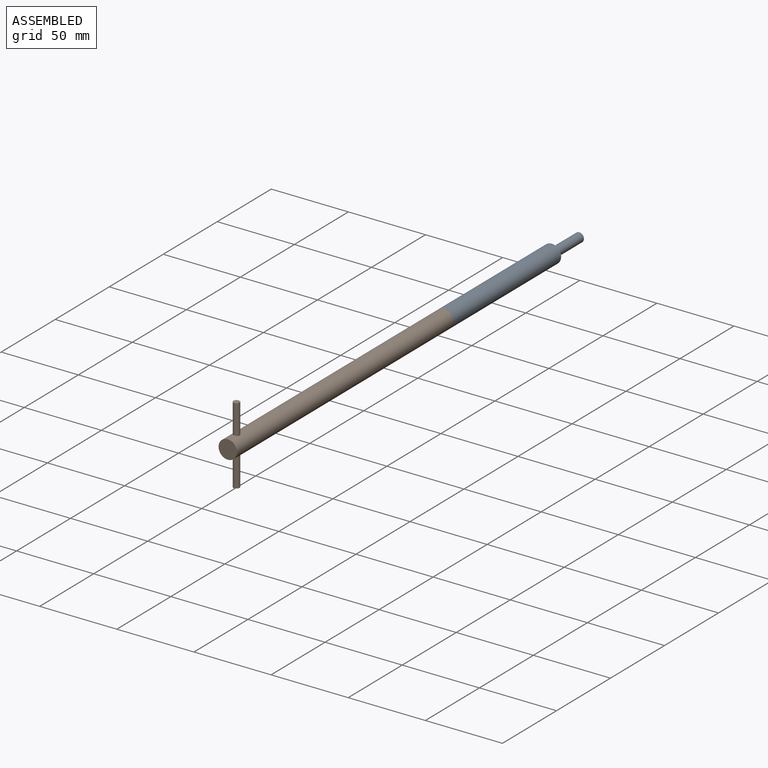
[diagram: assembled view]
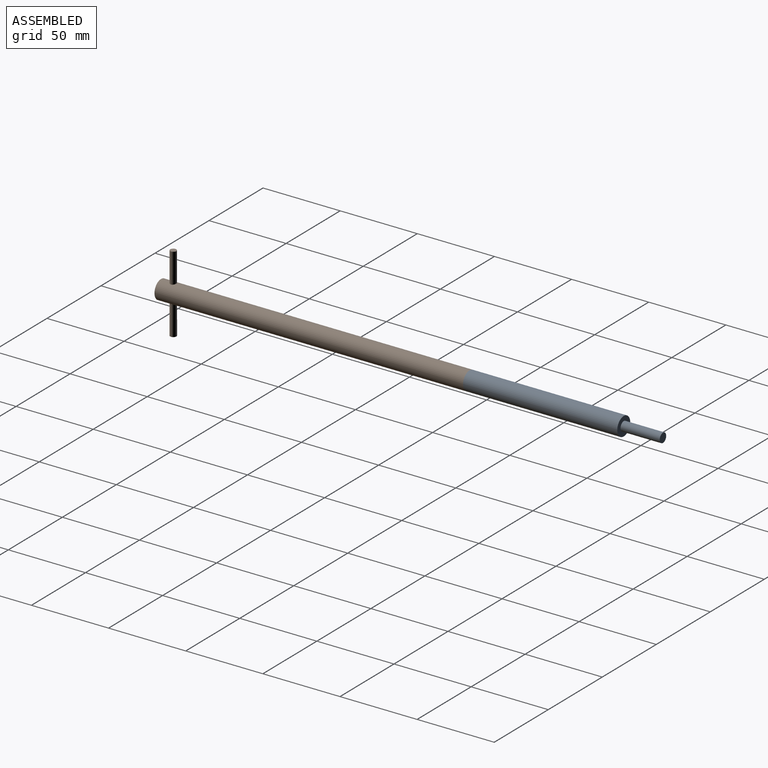
[diagram: assembled view, second angle]
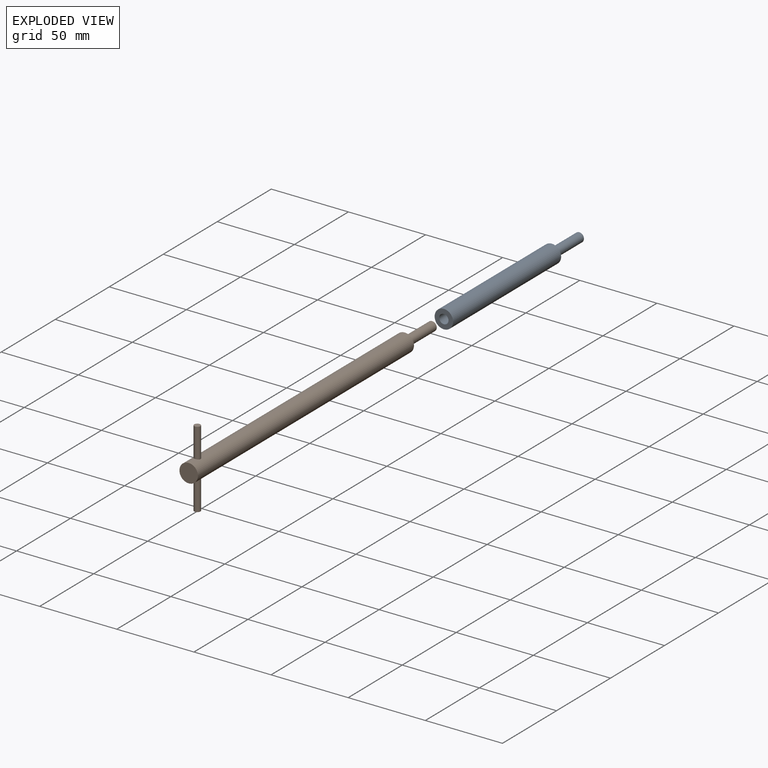
[diagram: exploded view]
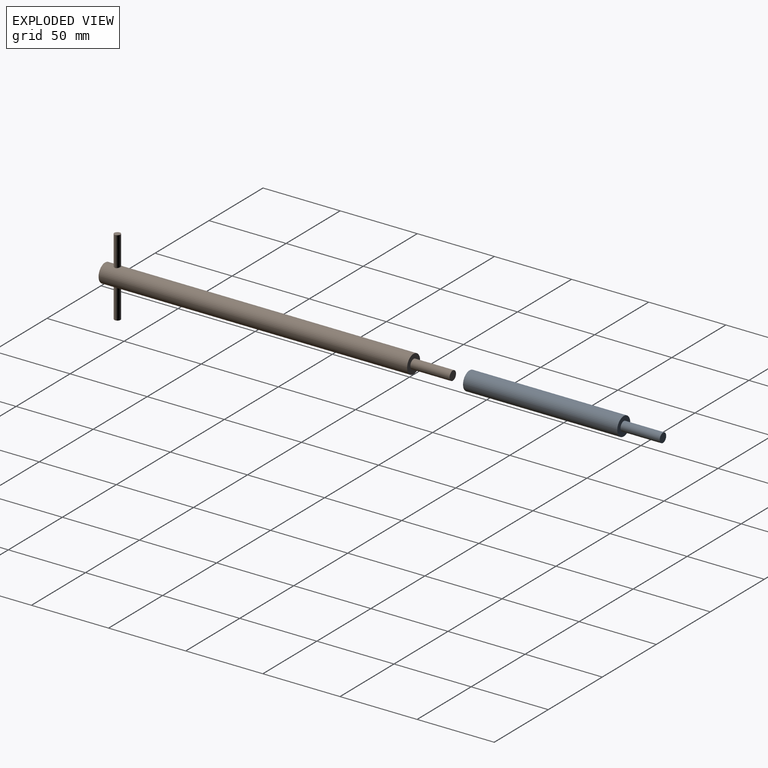
[diagram: exploded view, second angle]
ASSEMBLY  parts=2 mates=2
PART A: 7 faces, bbox 12x125.4x12 mm
  f0: cylinder r=6mm len=100mm, axis (0,-1,0), area 3769.9mm2, adj f1,f2
  f1: plane 12x12mm, normal (0,1,0), area 84.8mm2, adj f0,f5
  f2: plane 12x12mm, normal (0,-1,0), area 84.8mm2, adj f0,f3
  f3: cylinder r=3mm len=25.4mm, axis (0,-1,0), area 478.8mm2, adj f2,f4
  f4: plane 6x6mm, normal (0,-1,0), area 28.3mm2, adj f3
  f5: cylinder r=3mm len=25.4mm, axis (0,-1,0), area 478.8mm2, adj f1,f6
  f6: plane 6x6mm, normal (0,1,0), area 28.3mm2, adj f5
PART B: 9 faces, bbox 12x225.4x50 mm
  f0: cylinder r=6mm len=200mm, axis (0,-1,0), area 7514.4mm2, adj f1,f2,f6,f7
  f1: plane 12x12mm, normal (0,1,0), area 84.8mm2, adj f0,f3
  f2: plane 12x12mm, normal (0,-1,0), area 113.1mm2, adj f0
  f3: cylinder r=3mm len=25.4mm, axis (0,-1,0), area 478.8mm2, adj f1,f4
  f4: plane 6x6mm, normal (0,1,0), area 28.3mm2, adj f3
  f5: plane 4x4mm, normal (0,0,1), area 12.6mm2, adj f6
  f6: cylinder r=2mm len=19.34mm, axis (0,0,-1), area 240.9mm2, adj f0,f5
  f7: cylinder r=2mm len=19.34mm, axis (0,0,-1), area 240.9mm2, adj f0,f8
  f8: plane 4x4mm, normal (0,0,-1), area 12.6mm2, adj f7
PLACE A t=(-2.88,6.91,9.39)mm
PLACE B t=(-2.88,-193.09,9.39)mm
MATE slider B.f3 <-> A.f3  axis (0,-1,0) through (-2.88,32.31,9.39)mm
MATE planar A.f0 <-> B.f0  axis (0,-1,0) through (-2.88,6.91,9.39)mm
